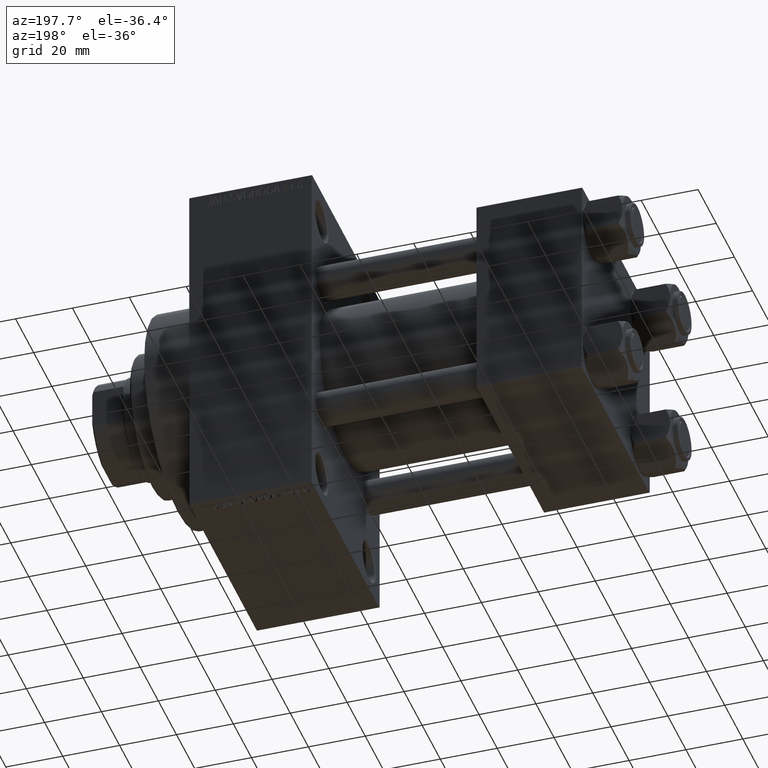
[diagram: clean part render]
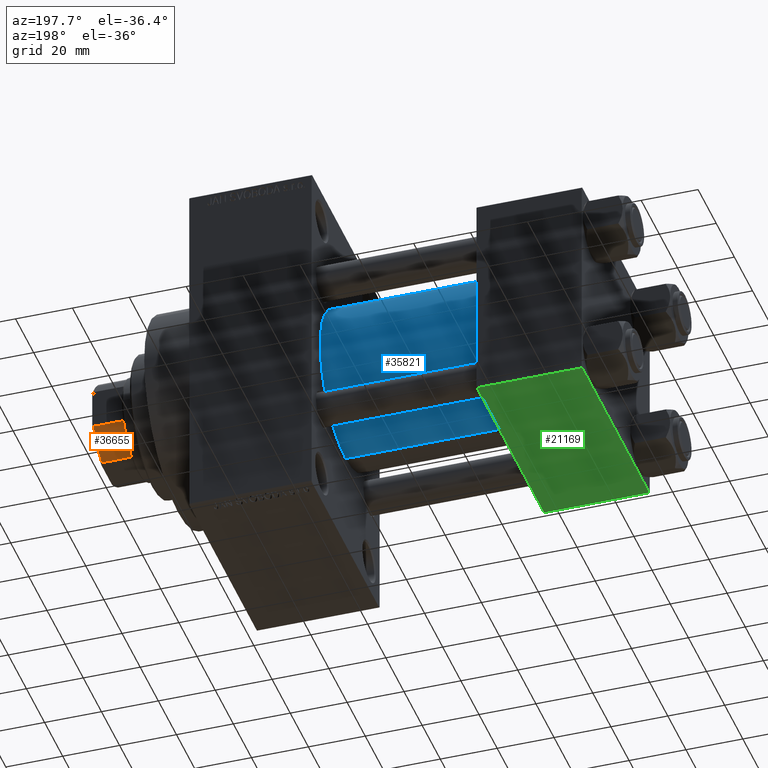
[diagram: same view with three faces highlighted in distinct colors, each labeled with its STEP entity id]
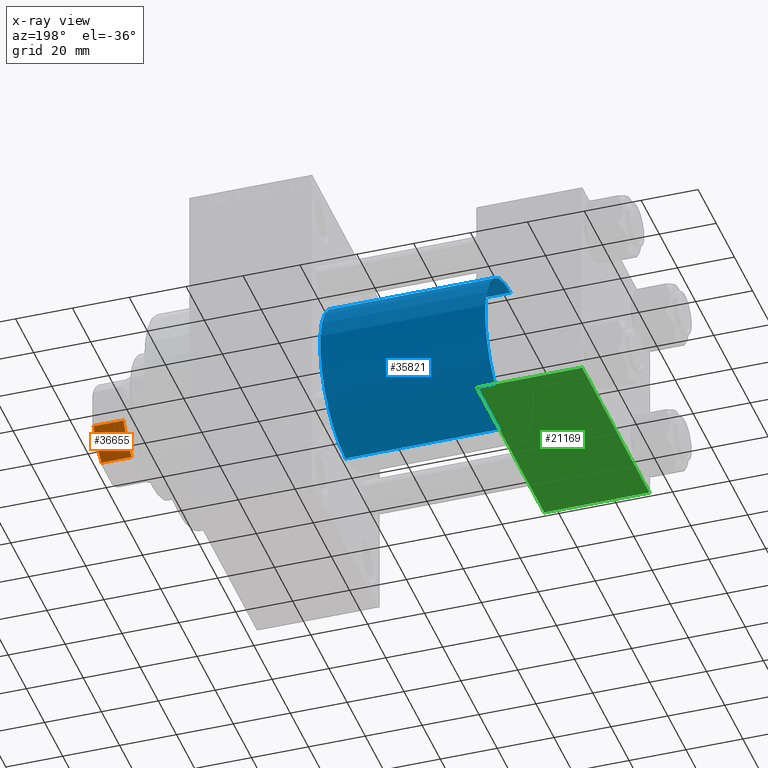
[diagram: x-ray of the same camera — body ghosted, the three highlighted faces saturated]
A machine part, auxiliary view with three faces highlighted in distinct colors.
The next image is the same camera in x-ray (body ghosted, the three faces saturated) — at least one of them is partly hidden behind the body in this view.
Their STEP definitions:

[orange] entity #36655 — the highlighted cylindrical surface (partial cylindrical patch) has radius 17.5 mm, axis along (1, 0, 0).
#81 = EDGE_CURVE ( 'NONE', #27605, #14014, #44210, .T. ) ;
#396 = EDGE_CURVE ( 'NONE', #14014, #18178, #2409, .T. ) ;
#2409 = CIRCLE ( 'NONE', #40583, 17.50000000000000000 ) ;
#2902 = DIRECTION ( 'NONE',  ( 0.000000000000000000, 0.000000000000000000, 1.000000000000000000 ) ) ;
#6882 = ORIENTED_EDGE ( 'NONE', *, *, #42815, .T. ) ;
#7456 = LINE ( 'NONE', #40863, #27808 ) ;
#7600 = FACE_OUTER_BOUND ( 'NONE', #43818, .T. ) ;
#8534 = CARTESIAN_POINT ( 'NONE',  ( 0.000000000000000000, 0.000000000000000000, -0.001000000000001000089 ) ) ;
#8792 = AXIS2_PLACEMENT_3D ( 'NONE', #17445, #2902, #32026 ) ;
#8903 = CARTESIAN_POINT ( 'NONE',  ( -16.00000000000000355, 7.088723439378909141, 141.5000000000000284 ) ) ;
#9113 = CARTESIAN_POINT ( 'NONE',  ( -16.00000000000000355, 7.088723439378912694, 131.0000000000000284 ) ) ;
#9477 = DIRECTION ( 'NONE',  ( -0.000000000000000000, -0.000000000000000000, 1.000000000000000000 ) ) ;
#11051 = EDGE_CURVE ( 'NONE', #29867, #18178, #7456, .T. ) ;
#14014 = VERTEX_POINT ( 'NONE', #8903 ) ;
#15316 = DIRECTION ( 'NONE',  ( -0.000000000000000000, -0.000000000000000000, 1.000000000000000000 ) ) ;
#17026 = AXIS2_PLACEMENT_3D ( 'NONE', #8534, #9477, #31204 ) ;
#17445 = CARTESIAN_POINT ( 'NONE',  ( 0.000000000000000000, 0.000000000000000000, 131.0000000000000000 ) ) ;
#18178 = VERTEX_POINT ( 'NONE', #45153 ) ;
#19464 = CIRCLE ( 'NONE', #8792, 17.50000000000003908 ) ;
#20677 = DIRECTION ( 'NONE',  ( 1.000000000000000000, 1.776356839400250465E-15, 0.000000000000000000 ) ) ;
#22732 = CARTESIAN_POINT ( 'NONE',  ( -16.00000000000000355, 7.088723439378909141, -0.001000000000001000089 ) ) ;
#27605 = VERTEX_POINT ( 'NONE', #9113 ) ;
#27620 = DIRECTION ( 'NONE',  ( -0.000000000000000000, -0.000000000000000000, -1.000000000000000000 ) ) ;
#27808 = VECTOR ( 'NONE', #39926, 1000.000000000000000 ) ;
#28144 = ORIENTED_EDGE ( 'NONE', *, *, #81, .T. ) ;
#29867 = VERTEX_POINT ( 'NONE', #44357 ) ;
#31204 = DIRECTION ( 'NONE',  ( 1.000000000000000000, 0.000000000000000000, 0.000000000000000000 ) ) ;
#32026 = DIRECTION ( 'NONE',  ( 1.000000000000000000, 0.000000000000000000, 0.000000000000000000 ) ) ;
#32153 = VECTOR ( 'NONE', #15316, 1000.000000000000000 ) ;
#32875 = ORIENTED_EDGE ( 'NONE', *, *, #396, .T. ) ;
#34339 = ORIENTED_EDGE ( 'NONE', *, *, #11051, .F. ) ;
#36655 = ADVANCED_FACE ( 'NONE', ( #7600 ), #45296, .T. ) ;
#39926 = DIRECTION ( 'NONE',  ( -0.000000000000000000, -0.000000000000000000, 1.000000000000000000 ) ) ;
#40583 = AXIS2_PLACEMENT_3D ( 'NONE', #41703, #27620, #20677 ) ;
#40863 = CARTESIAN_POINT ( 'NONE',  ( -7.088723439378916247, 16.00000000000000000, -0.001000000000001000089 ) ) ;
#41703 = CARTESIAN_POINT ( 'NONE',  ( 0.000000000000000000, 0.000000000000000000, 141.5000000000000284 ) ) ;
#42815 = EDGE_CURVE ( 'NONE', #29867, #27605, #19464, .T. ) ;
#43818 = EDGE_LOOP ( 'NONE', ( #28144, #32875, #34339, #6882 ) ) ;
#44210 = LINE ( 'NONE', #22732, #32153 ) ;
#44357 = CARTESIAN_POINT ( 'NONE',  ( -7.088723439378919799, 16.00000000000000000, 131.0000000000000284 ) ) ;
#45153 = CARTESIAN_POINT ( 'NONE',  ( -7.088723439378916247, 16.00000000000000000, 141.5000000000000284 ) ) ;
#45296 = CYLINDRICAL_SURFACE ( 'NONE', #17026, 17.50000000000000000 ) ;

[blue] entity #35821 — the highlighted cylindrical surface (partial cylindrical patch) has radius 28 mm, axis along (-1, -0, -0).
#3861 = EDGE_CURVE ( 'NONE', #4755, #11812, #45797, .T. ) ;
#4554 = ORIENTED_EDGE ( 'NONE', *, *, #3861, .F. ) ;
#4755 = VERTEX_POINT ( 'NONE', #43174 ) ;
#4937 = EDGE_CURVE ( 'NONE', #11284, #4755, #10813, .T. ) ;
#5507 = AXIS2_PLACEMENT_3D ( 'NONE', #14994, #37438, #11650 ) ;
#5637 = EDGE_LOOP ( 'NONE', ( #27074, #44891, #9838, #4554 ) ) ;
#6601 = DIRECTION ( 'NONE',  ( -1.000000000000000000, -0.000000000000000000, -0.000000000000000000 ) ) ;
#7145 = CARTESIAN_POINT ( 'NONE',  ( 37.00000000000000000, 8.269258236473776482E-16, -28.00000000000000000 ) ) ;
#7525 = CARTESIAN_POINT ( 'NONE',  ( 37.00000000000000000, -2.602085213965210642E-15, 28.00000000000000000 ) ) ;
#9838 = ORIENTED_EDGE ( 'NONE', *, *, #20090, .T. ) ;
#10813 = CIRCLE ( 'NONE', #5507, 28.00000000000000000 ) ;
#11284 = VERTEX_POINT ( 'NONE', #14778 ) ;
#11650 = DIRECTION ( 'NONE',  ( 0.000000000000000000, 0.000000000000000000, -1.000000000000000000 ) ) ;
#11812 = VERTEX_POINT ( 'NONE', #7525 ) ;
#14778 = CARTESIAN_POINT ( 'NONE',  ( 95.00000000000000000, 8.269258236473776482E-16, -28.00000000000000000 ) ) ;
#14994 = CARTESIAN_POINT ( 'NONE',  ( 95.00000000000000000, -2.602085213965210642E-15, 0.000000000000000000 ) ) ;
#15883 = AXIS2_PLACEMENT_3D ( 'NONE', #16491, #23665, #16257 ) ;
#16257 = DIRECTION ( 'NONE',  ( 0.000000000000000000, 0.000000000000000000, 1.000000000000000000 ) ) ;
#16491 = CARTESIAN_POINT ( 'NONE',  ( 37.00000000000000000, -2.602085213965210642E-15, 0.000000000000000000 ) ) ;
#16895 = VECTOR ( 'NONE', #20738, 1000.000000000000000 ) ;
#20090 = EDGE_CURVE ( 'NONE', #39754, #11812, #43349, .T. ) ;
#20738 = DIRECTION ( 'NONE',  ( -1.000000000000000000, -0.000000000000000000, -0.000000000000000000 ) ) ;
#21155 = DIRECTION ( 'NONE',  ( 0.000000000000000000, 0.000000000000000000, 1.000000000000000000 ) ) ;
#23665 = DIRECTION ( 'NONE',  ( 1.000000000000000000, -0.000000000000000000, 0.000000000000000000 ) ) ;
#27074 = ORIENTED_EDGE ( 'NONE', *, *, #4937, .F. ) ;
#27248 = LINE ( 'NONE', #31926, #38997 ) ;
#28323 = FACE_OUTER_BOUND ( 'NONE', #5637, .T. ) ;
#30003 = AXIS2_PLACEMENT_3D ( 'NONE', #39313, #6601, #21155 ) ;
#31725 = CARTESIAN_POINT ( 'NONE',  ( 95.00000000000000000, -2.602085213965210642E-15, 28.00000000000000000 ) ) ;
#31885 = EDGE_CURVE ( 'NONE', #11284, #39754, #27248, .T. ) ;
#31926 = CARTESIAN_POINT ( 'NONE',  ( 95.00000000000000000, 8.269258236473776482E-16, -28.00000000000000000 ) ) ;
#35821 = ADVANCED_FACE ( 'NONE', ( #28323 ), #42874, .T. ) ;
#37438 = DIRECTION ( 'NONE',  ( 1.000000000000000000, 0.000000000000000000, 0.000000000000000000 ) ) ;
#38997 = VECTOR ( 'NONE', #42904, 1000.000000000000000 ) ;
#39313 = CARTESIAN_POINT ( 'NONE',  ( 95.00000000000000000, -2.602085213965210642E-15, 0.000000000000000000 ) ) ;
#39754 = VERTEX_POINT ( 'NONE', #7145 ) ;
#42874 = CYLINDRICAL_SURFACE ( 'NONE', #30003, 28.00000000000000000 ) ;
#42904 = DIRECTION ( 'NONE',  ( -1.000000000000000000, -0.000000000000000000, -0.000000000000000000 ) ) ;
#43174 = CARTESIAN_POINT ( 'NONE',  ( 95.00000000000000000, -2.602085213965210642E-15, 28.00000000000000000 ) ) ;
#43349 = CIRCLE ( 'NONE', #15883, 28.00000000000000000 ) ;
#44891 = ORIENTED_EDGE ( 'NONE', *, *, #31885, .T. ) ;
#45797 = LINE ( 'NONE', #31725, #16895 ) ;

[green] entity #21169 — the highlighted planar face has unit normal (0, 0, -1).
#583 = VECTOR ( 'NONE', #43029, 1000.000000000000000 ) ;
#1670 = VECTOR ( 'NONE', #14936, 1000.000000000000000 ) ;
#3852 = ORIENTED_EDGE ( 'NONE', *, *, #45300, .T. ) ;
#6469 = DIRECTION ( 'NONE',  ( 0.000000000000000000, 9.251858538542972814E-17, -1.000000000000000000 ) ) ;
#6877 = CARTESIAN_POINT ( 'NONE',  ( 0.000000000000000000, 37.49999999999999289, -37.50000000000000000 ) ) ;
#7986 = VERTEX_POINT ( 'NONE', #32225 ) ;
#10271 = DIRECTION ( 'NONE',  ( 0.000000000000000000, 1.000000000000000000, 9.251858538542972814E-17 ) ) ;
#11108 = ORIENTED_EDGE ( 'NONE', *, *, #19715, .T. ) ;
#11752 = VERTEX_POINT ( 'NONE', #35473 ) ;
#12493 = ORIENTED_EDGE ( 'NONE', *, *, #14866, .T. ) ;
#13893 = CARTESIAN_POINT ( 'NONE',  ( 0.000000000000000000, 36.99999999999997868, -37.50000000000000000 ) ) ;
#14060 = VERTEX_POINT ( 'NONE', #14351 ) ;
#14351 = CARTESIAN_POINT ( 'NONE',  ( 37.00000000000000000, 36.99999999999997868, -37.50000000000000000 ) ) ;
#14830 = VERTEX_POINT ( 'NONE', #13893 ) ;
#14866 = EDGE_CURVE ( 'NONE', #14830, #14060, #28475, .T. ) ;
#14936 = DIRECTION ( 'NONE',  ( 0.000000000000000000, -1.000000000000000000, -9.251858538542972814E-17 ) ) ;
#15351 = EDGE_LOOP ( 'NONE', ( #30406, #12493, #3852, #11108 ) ) ;
#17134 = DIRECTION ( 'NONE',  ( 0.000000000000000000, -1.000000000000000000, -9.251858538542972814E-17 ) ) ;
#17369 = LINE ( 'NONE', #43396, #30350 ) ;
#18758 = EDGE_CURVE ( 'NONE', #14830, #7986, #31944, .T. ) ;
#19715 = EDGE_CURVE ( 'NONE', #11752, #7986, #17369, .T. ) ;
#21169 = ADVANCED_FACE ( 'NONE', ( #42737 ), #24607, .T. ) ;
#22353 = CARTESIAN_POINT ( 'NONE',  ( 37.00000000000000000, 37.49999999999999289, -37.50000000000000000 ) ) ;
#24607 = PLANE ( 'NONE',  #28134 ) ;
#28068 = VECTOR ( 'NONE', #17134, 1000.000000000000000 ) ;
#28134 = AXIS2_PLACEMENT_3D ( 'NONE', #39181, #6469, #10271 ) ;
#28475 = LINE ( 'NONE', #42782, #583 ) ;
#29081 = DIRECTION ( 'NONE',  ( -1.000000000000000000, 0.000000000000000000, 0.000000000000000000 ) ) ;
#30350 = VECTOR ( 'NONE', #29081, 1000.000000000000000 ) ;
#30406 = ORIENTED_EDGE ( 'NONE', *, *, #18758, .F. ) ;
#31944 = LINE ( 'NONE', #6877, #28068 ) ;
#32225 = CARTESIAN_POINT ( 'NONE',  ( 0.000000000000000000, -37.00000000000002132, -37.50000000000000711 ) ) ;
#33563 = LINE ( 'NONE', #22353, #1670 ) ;
#35473 = CARTESIAN_POINT ( 'NONE',  ( 37.00000000000000000, -37.00000000000002132, -37.50000000000000711 ) ) ;
#39181 = CARTESIAN_POINT ( 'NONE',  ( 37.00000000000000000, 37.49999999999999289, -37.50000000000000000 ) ) ;
#42737 = FACE_OUTER_BOUND ( 'NONE', #15351, .T. ) ;
#42782 = CARTESIAN_POINT ( 'NONE',  ( 37.00000000000000000, 36.99999999999997868, -37.50000000000000000 ) ) ;
#43029 = DIRECTION ( 'NONE',  ( 1.000000000000000000, 0.000000000000000000, 0.000000000000000000 ) ) ;
#43396 = CARTESIAN_POINT ( 'NONE',  ( 0.000000000000000000, -37.00000000000002132, -37.50000000000000711 ) ) ;
#45300 = EDGE_CURVE ( 'NONE', #14060, #11752, #33563, .T. ) ;